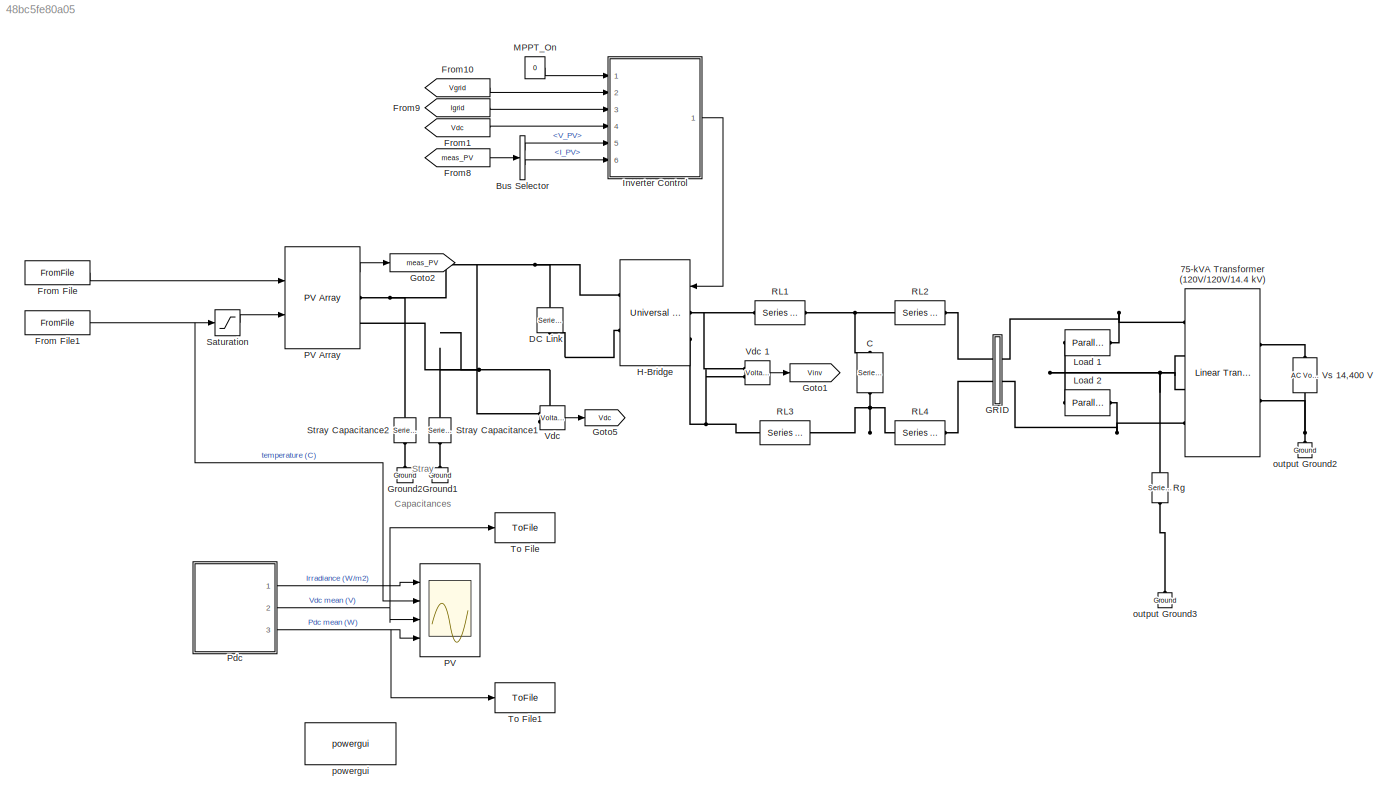
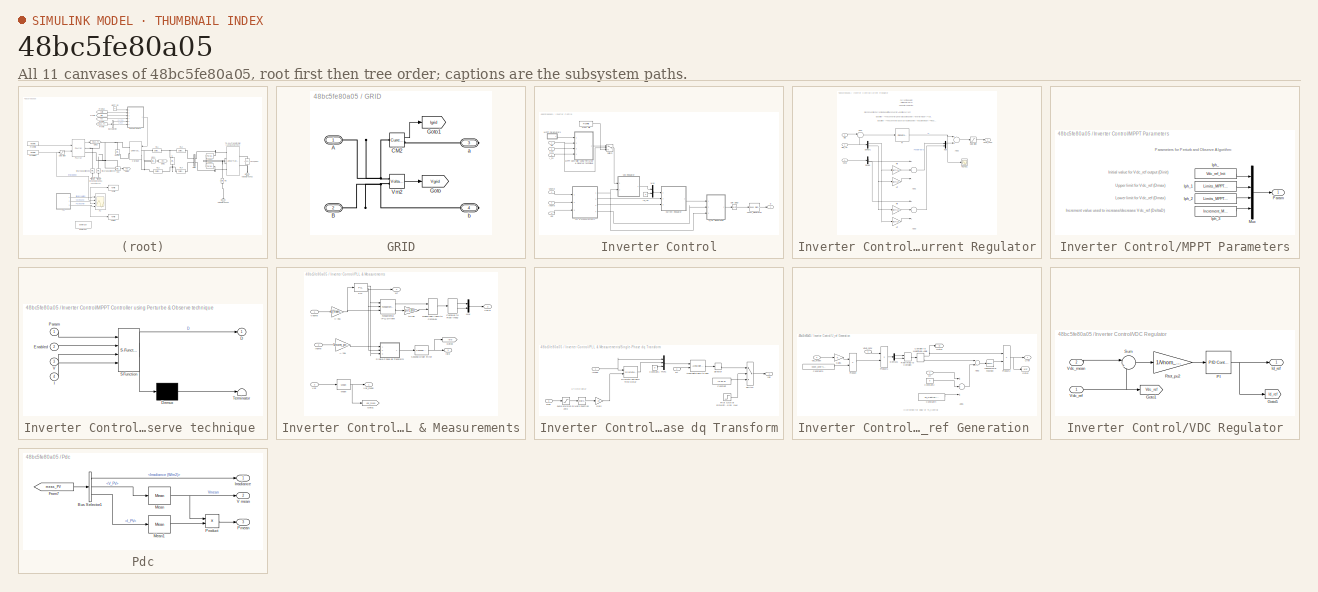
[diagram: thumbnail index - all 11 canvases of the model, root first then tree order]
MODEL slx_48bc5fe80a05
KIND model
CONFIG AbsTol = auto
CONFIG EnableMultiTasking = off
CONFIG FixedStep = auto
CONFIG InitFcn = %\nFc=3780;                          % PWM Carrier frequency (Hz) \nTs_Power=1/Fc/200;         % Simscape Power Systems sample time (s)\nTs_Control=20*Ts_Power;  % Inverter Control system sample time (s)
CONFIG MaxStep = auto
CONFIG MinStep = auto
CONFIG PreLoadFcn = %\nFc=3780;                          % PWM Carrier frequency (Hz) \nTs_Power=1/Fc/200;         % Simscape Power Systems sample time (s)\nTs_Control=20*Ts_Power;  % Inverter Control system sample time (s)
CONFIG RelTol = 1e-3
CONFIG SampleTimeConstraint = Unconstrained
CONFIG Solver = FixedStepDiscrete
CONFIG SolverName = FixedStepDiscrete
CONFIG StartTime = 0.0
CONFIG StopTime = 600
BLOCK [Reference] 75-kVA Transformer (120V//120V//14.4 kV)  REF=powerlib/Elements/Linear Transformer
  Ports = [0, 0, 0, 0, 0, 2, 4]
  SourceBlock = powerlib/Elements/Linear Transformer
  SourceProductBaseCode = PS
  SourceProductName = Simscape Electrical
  SourceType = Linear Transformer
BLOCK [BusSelector] Bus Selector
  OutputAsBus = off
  OutputSignals = V_PV,I_PV
  Ports = [1, 2]
BLOCK [Reference] C  REF=powerlib/Elements/Series RLC Load
  AttributesFormatString = \n
  Ports = [0, 0, 0, 0, 0, 1, 1]
  SourceBlock = powerlib/Elements/Series RLC Load
  SourceProductBaseCode = PS
  SourceProductName = Simscape Electrical
  SourceType = Series RLC Load
BLOCK [Reference] DC Link  REF=powerlib/Elements/Series RLC Branch
  AttributesFormatString = \n
  Ports = [0, 0, 0, 0, 0, 1, 1]
  SourceBlock = powerlib/Elements/Series RLC Branch
  SourceProductBaseCode = PS
  SourceProductName = Simscape Electrical
  SourceType = Series RLC Branch
BLOCK [FromFile] From File
  FileName = irrtimeseries.mat
  InterpolationWithinTimeRange = Zero order hold
  SampleTime = 0
BLOCK [FromFile] From File1
  FileName = temtimeseries.mat
  InterpolationWithinTimeRange = Zero order hold
  SampleTime = 0
BLOCK [From] From1
  CloseFcn = tagdialog Close
  GotoTag = Vdc
  TagVisibility = global
BLOCK [From] From10
  CloseFcn = tagdialog Close
  GotoTag = Vgrid
  TagVisibility = global
BLOCK [From] From8
  CloseFcn = tagdialog Close
  GotoTag = meas_PV
  TagVisibility = global
BLOCK [From] From9
  CloseFcn = tagdialog Close
  GotoTag = Igrid
  TagVisibility = global
BLOCK [SubSystem] GRID
  Ports = [0, 0, 0, 0, 0, 2, 2]
  RequestExecContextInheritance = off
BLOCK [PMIOPort] GRID/A
  Side = Left
BLOCK [PMIOPort] GRID/B
  Port = 2
  Side = Left
BLOCK [Reference] GRID/CM2  REF=powerlib/Measurements/Current Measurement
  Ports = [0, 1, 0, 0, 0, 1, 1]
  SourceBlock = powerlib/Measurements/Current Measurement
  SourceProductBaseCode = PS
  SourceProductName = Simscape Electrical
  SourceType = Current Measurement
  UserDataPersistent = on
BLOCK [Goto] GRID/Goto
  GotoTag = Vgrid
  TagVisibility = global
BLOCK [Goto] GRID/Goto1
  GotoTag = Igrid
  TagVisibility = global
BLOCK [Reference] GRID/Vm2  REF=powerlib/Measurements/Voltage Measurement
  Ports = [0, 1, 0, 0, 0, 2]
  SourceBlock = powerlib/Measurements/Voltage Measurement
  SourceProductBaseCode = PS
  SourceProductName = Simscape Electrical
  SourceType = Voltage Measurement
  UserDataPersistent = on
BLOCK [PMIOPort] GRID/a
  Port = 3
  Side = Right
BLOCK [PMIOPort] GRID/b
  Port = 4
  Side = Right
BLOCK [Goto] Goto1
  GotoTag = Vinv
  TagVisibility = global
BLOCK [Goto] Goto2
  GotoTag = meas_PV
  TagVisibility = global
BLOCK [Goto] Goto5
  GotoTag = Vdc
  TagVisibility = global
BLOCK [Reference] Ground1  REF=powerlib/Elements/Ground
  Ports = [0, 0, 0, 0, 0, 1]
  SourceBlock = powerlib/Elements/Ground
  SourceProductBaseCode = PS
  SourceProductName = Simscape Electrical
  SourceType = Ground
BLOCK [Reference] Ground2  REF=powerlib/Elements/Ground
  Ports = [0, 0, 0, 0, 0, 1]
  SourceBlock = powerlib/Elements/Ground
  SourceProductBaseCode = PS
  SourceProductName = Simscape Electrical
  SourceType = Ground
BLOCK [Reference] H-Bridge   REF=powerlib/Power
Electronics/Universal Bridge
  Ports = [1, 0, 0, 0, 0, 2, 2]
  SourceBlock = powerlib/Power\nElectronics/Universal Bridge
  SourceProductBaseCode = PS
  SourceProductName = Simscape Electrical
  SourceType = Universal Bridge
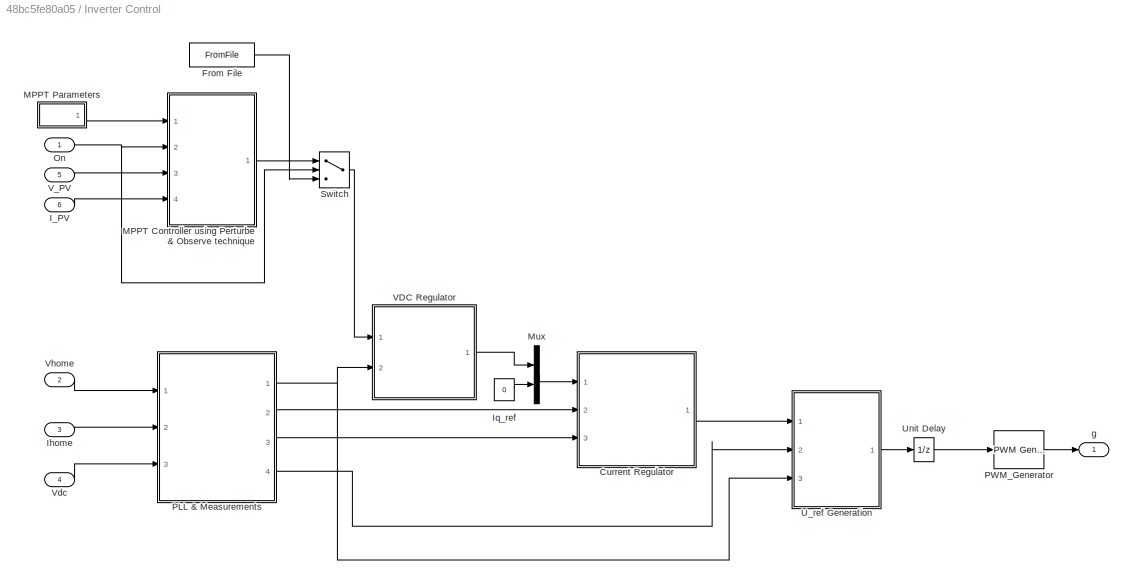
BLOCK [SubSystem] Inverter Control
  Ports = [6, 1]
  RequestExecContextInheritance = off
BLOCK [SubSystem] Inverter Control/Current Regulator
  Ports = [3, 1]
  RequestExecContextInheritance = off
BLOCK [Sum] Inverter Control/Current Regulator/Add1
  InputSameDT = off
  Inputs = ++-
  OutDataTypeStr = Inherit: Inherit via internal rule
  Ports = [3, 1]
  SaturateOnIntegerOverflow = off
BLOCK [Sum] Inverter Control/Current Regulator/Add2
  InputSameDT = off
  OutDataTypeStr = Inherit: Inherit via internal rule
  Ports = [2, 1]
  SaturateOnIntegerOverflow = off
BLOCK [Sum] Inverter Control/Current Regulator/Add3
  InputSameDT = off
  Inputs = +++
  OutDataTypeStr = Inherit: Inherit via internal rule
  Ports = [3, 1]
  SaturateOnIntegerOverflow = off
BLOCK [Demux] Inverter Control/Current Regulator/Demux
  DisplayOption = bar
  Outputs = 2
  Ports = [1, 2]
BLOCK [Demux] Inverter Control/Current Regulator/Demux1
  DisplayOption = bar
  Outputs = 2
  Ports = [1, 2]
BLOCK [Inport] Inverter Control/Current Regulator/IdIq
  IconDisplay = Port number
  Port = 3
  PortDimensions = 2
BLOCK [Inport] Inverter Control/Current Regulator/IdIq_ref
  IconDisplay = Port number
  PortDimensions = 2
BLOCK [Gain] Inverter Control/Current Regulator/Lff
  Gain = RLff(2)
BLOCK [Gain] Inverter Control/Current Regulator/Lff  
  Gain = RLff(2)
BLOCK [Mux] Inverter Control/Current Regulator/Mux
  DisplayOption = bar
  Inputs = 2
  Ports = [2, 1]
BLOCK [Reference] Inverter Control/Current Regulator/PI  REF=simulink/Continuous/PID Controller
  Ports = [1, 1]
  SourceBlock = simulink/Continuous/PID Controller
  SourceProductBaseCode = SL
  SourceProductName = Simulink
  SourceType = PID 1dof
BLOCK [Scope] Inverter Control/Current Regulator/PI_Ireg1
  Floating = off
  NumInputPorts = 1
  Ports = [1]
  ScopeSpecificationString = C++SS(StrPVP('Location','[1318, 429, 1642, 668]'),MxPVP('AxesTitles',53,'struct(''axes1'',''%<SignalLabel>'')'),MxPVP('ScopeGraphics',56,'struct(''FigureColor'',''[0.5 0.5 0.5]'',''AxesColor'',''[0 0 0]'',''AxesTickColor'',''[1 1 1]'',''LineColors'',''[1 1 0;1 0 1;0 1 1;1 0 0;0 1 0;0 0 1]'',''LineStyles'',''-|-|-|-|-|-'',''LineWidths'',''[0.5 0.5 0.5 0.5 0.5 0.5]'',''MarkerStyles'',''none|none|non...<+191ch>
BLOCK [Gain] Inverter Control/Current Regulator/Rff
  Gain = RLff(1)
BLOCK [Gain] Inverter Control/Current Regulator/Rff 
  Gain = RLff(1)
BLOCK [Saturate] Inverter Control/Current Regulator/Saturation
  InputPortMap = u0
  LowerLimit = -1.5
  Ports = [1, 1]
  UpperLimit = 1.5
BLOCK [Sum] Inverter Control/Current Regulator/Sum
  IconShape = round
  InputSameDT = off
  Inputs = |-+
  OutDataTypeStr = Inherit: Inherit via internal rule
  Ports = [2, 1]
  SaturateOnIntegerOverflow = off
BLOCK [Inport] Inverter Control/Current Regulator/VdVq
  IconDisplay = Port number
  Port = 2
  PortDimensions = 2
BLOCK [Outport] Inverter Control/Current Regulator/VdVq_conv
  IconDisplay = Port number
BLOCK [FromFile] Inverter Control/From File
  FileName = OPTV.mat
  InterpolationWithinTimeRange = Zero order hold
  SampleTime = 0
BLOCK [Inport] Inverter Control/I_PV
  IconDisplay = Port number
  Port = 6
  PortDimensions = 1
BLOCK [Inport] Inverter Control/Ihome
  IconDisplay = Port number
  Port = 3
  PortDimensions = 1
BLOCK [Constant] Inverter Control/Iq_ref
  Value = 0
BLOCK [SubSystem] Inverter Control/MPPT Controller using Perturbe & Observe technique 
  ErrorFcn = Stateflow.Translate.translate
  PermitHierarchicalResolution = ExplicitOnly
  Ports = [4, 1]
  RequestExecContextInheritance = off
  SFBlockType = MATLAB Function
  TreatAsAtomicUnit = on
BLOCK [Demux] Inverter Control/MPPT Controller using Perturbe & Observe technique / Demux 
  Outputs = 1
  Ports = [1, 1]
BLOCK [S-Function] Inverter Control/MPPT Controller using Perturbe & Observe technique / SFunction 
  EnableBusSupport = on
  FunctionName = sf_sfun
  PortCounts = [4 2]
  Ports = [4, 2]
  SFcnIsStateOwnerBlock = off
  SFunctionDeploymentMode = off
  Tag = Stateflow S-Function power_PVarray_3500W_521 2
BLOCK [Terminator] Inverter Control/MPPT Controller using Perturbe & Observe technique / Terminator 
BLOCK [Outport] Inverter Control/MPPT Controller using Perturbe & Observe technique /D
  IconDisplay = Port number
BLOCK [Inport] Inverter Control/MPPT Controller using Perturbe & Observe technique /Enabled
  IconDisplay = Port number
  Port = 2
BLOCK [Inport] Inverter Control/MPPT Controller using Perturbe & Observe technique /I
  IconDisplay = Port number
  Port = 4
BLOCK [Inport] Inverter Control/MPPT Controller using Perturbe & Observe technique /Param
  IconDisplay = Port number
BLOCK [Inport] Inverter Control/MPPT Controller using Perturbe & Observe technique /V
  IconDisplay = Port number
  Port = 3
BLOCK [SubSystem] Inverter Control/MPPT Parameters
  Ports = [0, 1]
  RequestExecContextInheritance = off
BLOCK [Constant] Inverter Control/MPPT Parameters/Iph_
  Value = Vdc_ref_Init
BLOCK [Constant] Inverter Control/MPPT Parameters/Iph_1
  Value = Limits_MPPT(1)
BLOCK [Constant] Inverter Control/MPPT Parameters/Iph_2
  Value = Limits_MPPT(2)
BLOCK [Constant] Inverter Control/MPPT Parameters/Iph_3
  Value = Increment_MPPT
BLOCK [Mux] Inverter Control/MPPT Parameters/Mux
  DisplayOption = bar
  Ports = [4, 1]
BLOCK [Outport] Inverter Control/MPPT Parameters/Param
  IconDisplay = Port number
BLOCK [Mux] Inverter Control/Mux
  DisplayOption = bar
  Inputs = 2
  Ports = [2, 1]
BLOCK [Inport] Inverter Control/On
  IconDisplay = Port number
  PortDimensions = 1
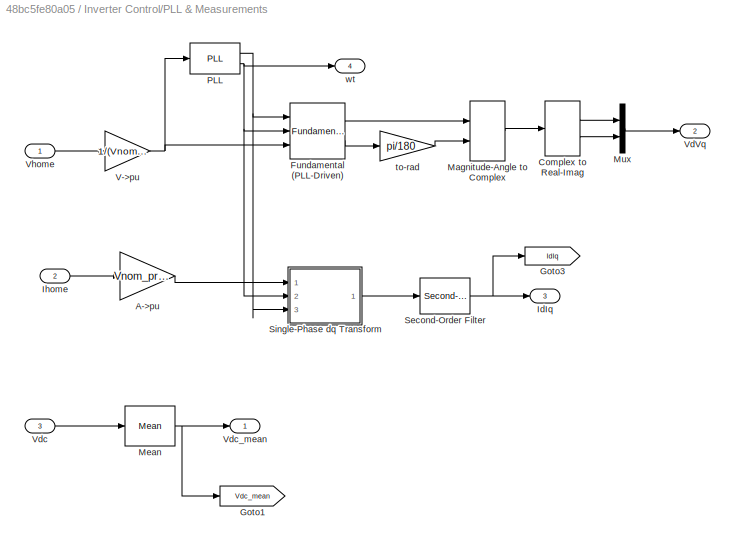
BLOCK [SubSystem] Inverter Control/PLL & Measurements
  Ports = [3, 4]
  RequestExecContextInheritance = off
BLOCK [Gain] Inverter Control/PLL & Measurements/A->pu
  Gain = Vnom_prim/Pnom/sqrt(2)
BLOCK [ComplexToRealImag] Inverter Control/PLL & Measurements/Complex to Real-Imag
  Ports = [1, 2]
BLOCK [Reference] Inverter Control/PLL & Measurements/Fundamental (PLL-Driven)  REF=powerlib_meascontrol/Measurements/Fundamental
(PLL-Driven)
  Ports = [3, 2]
  SourceBlock = powerlib_meascontrol/Measurements/Fundamental\n(PLL-Driven)
  SourceProductBaseCode = PS
  SourceProductName = Simscape Electrical
  SourceType = Fundamental (PLL-Driven)
BLOCK [Goto] Inverter Control/PLL & Measurements/Goto1
  GotoTag = Vdc_mean
  TagVisibility = global
BLOCK [Goto] Inverter Control/PLL & Measurements/Goto3
  GotoTag = IdIq
  TagVisibility = global
BLOCK [Outport] Inverter Control/PLL & Measurements/IdIq
  IconDisplay = Port number
  Port = 3
BLOCK [Inport] Inverter Control/PLL & Measurements/Ihome
  IconDisplay = Port number
  Port = 2
BLOCK [MagnitudeAngleToComplex] Inverter Control/PLL & Measurements/Magnitude-Angle to Complex
  Ports = [2, 1]
BLOCK [Reference] Inverter Control/PLL & Measurements/Mean  REF=powerlib_meascontrol/Measurements/Mean
  Ports = [1, 1]
  SourceBlock = powerlib_meascontrol/Measurements/Mean
  SourceProductBaseCode = PS
  SourceProductName = Simscape Electrical
  SourceType = Mean
BLOCK [Mux] Inverter Control/PLL & Measurements/Mux
  DisplayOption = bar
  Inputs = 2
  Ports = [2, 1]
BLOCK [Reference] Inverter Control/PLL & Measurements/PLL  REF=powerlib_meascontrol/PLL/PLL
  Ports = [1, 2]
  SourceBlock = powerlib_meascontrol/PLL/PLL
  SourceProductBaseCode = PS
  SourceProductName = Simscape Electrical
  SourceType = PLL
BLOCK [Reference] Inverter Control/PLL & Measurements/Second-Order Filter  REF=powerlib_meascontrol/Filters/Second-Order
Filter
  Ports = [1, 1]
  SourceBlock = powerlib_meascontrol/Filters/Second-Order\nFilter
  SourceProductBaseCode = PS
  SourceProductName = Simscape Electrical
  SourceType = Second-Order Filter
BLOCK [SubSystem] Inverter Control/PLL & Measurements/Single-Phase dq Transform
  Ports = [3, 1]
  RequestExecContextInheritance = off
BLOCK [Reference] Inverter Control/PLL & Measurements/Single-Phase dq Transform/Alpha-Beta-Zero to dq0  REF=powerlib_meascontrol/Transformations/Alpha-Beta-Zero
to dq0
  Ports = [2, 1]
  SourceBlock = powerlib_meascontrol/Transformations/Alpha-Beta-Zero\nto dq0
  SourceProductBaseCode = PS
  SourceProductName = Simscape Electrical
  SourceType = Alpha-Beta-Zero to dq0 Transformation
BLOCK [Constant] Inverter Control/PLL & Measurements/Single-Phase dq Transform/Constant
  Value = [0.92 0]
BLOCK [Constant] Inverter Control/PLL & Measurements/Single-Phase dq Transform/Constant1
  Value = 0
BLOCK [Reference] Inverter Control/PLL & Measurements/Single-Phase dq Transform/Discrete Variable Time Delay  REF=powerlib_meascontrol/Additional Components/Discrete Variable
Time Delay
  Ports = [2, 1]
  SourceBlock = powerlib_meascontrol/Additional Components/Discrete Variable\nTime Delay
  SourceProductBaseCode = PS
  SourceProductName = Simscape Electrical
  SourceType = Discrete Variable Time Delay
BLOCK [Step] Inverter Control/PLL & Measurements/Single-Phase dq Transform/First cycle of simulation Id=0.92, Iq=0
  SampleTime = Ts_Control
  Time = 1/Fnom
BLOCK [Inport] Inverter Control/PLL & Measurements/Single-Phase dq Transform/Freq
  IconDisplay = Port number
  Port = 3
BLOCK [Gain] Inverter Control/PLL & Measurements/Single-Phase dq Transform/Gain
  Gain = 1/4
  OutDataTypeStr = Inherit: Inherit via internal rule
  ParamDataTypeStr = Inherit: Inherit via internal rule
  SaturateOnIntegerOverflow = off
BLOCK [Outport] Inverter Control/PLL & Measurements/Single-Phase dq Transform/Idq
  IconDisplay = Port number
BLOCK [Inport] Inverter Control/PLL & Measurements/Single-Phase dq Transform/Imeas
  IconDisplay = Port number
BLOCK [Math] Inverter Control/PLL & Measurements/Single-Phase dq Transform/Math Function
  Operator = reciprocal
  Ports = [1, 1]
BLOCK [Mux] Inverter Control/PLL & Measurements/Single-Phase dq Transform/Mux1
  DisplayOption = bar
  Inputs = 3
  Ports = [3, 1]
BLOCK [Selector] Inverter Control/PLL & Measurements/Single-Phase dq Transform/Selector
  IndexOptions = Index vector (dialog)
  Indices = [1 2]
  InputPortWidth = 3
  OutputSizes = 1
  Ports = [1, 1]
BLOCK [Switch] Inverter Control/PLL & Measurements/Single-Phase dq Transform/Switch
  Criteria = u2 ~= 0
  InputSameDT = off
  SaturateOnIntegerOverflow = off
BLOCK [Saturate] Inverter Control/PLL & Measurements/Single-Phase dq Transform/avoid division by zero
  InputPortMap = u0
  LowerLimit = 40
  Ports = [1, 1]
  UpperLimit = 70
BLOCK [Inport] Inverter Control/PLL & Measurements/Single-Phase dq Transform/wt
  IconDisplay = Port number
  Port = 2
BLOCK [Gain] Inverter Control/PLL & Measurements/V->pu
  Gain = 1/(Vnom_prim*sqrt(2))
BLOCK [Outport] Inverter Control/PLL & Measurements/VdVq
  IconDisplay = Port number
  Port = 2
BLOCK [Inport] Inverter Control/PLL & Measurements/Vdc
  IconDisplay = Port number
  Port = 3
BLOCK [Outport] Inverter Control/PLL & Measurements/Vdc_mean
  IconDisplay = Port number
BLOCK [Inport] Inverter Control/PLL & Measurements/Vhome
  IconDisplay = Port number
BLOCK [Gain] Inverter Control/PLL & Measurements/to-rad
  Gain = pi/180
  OutDataTypeStr = Inherit: Inherit via internal rule
  ParamDataTypeStr = Inherit: Inherit via internal rule
  SaturateOnIntegerOverflow = off
BLOCK [Outport] Inverter Control/PLL & Measurements/wt
  IconDisplay = Port number
  Port = 4
BLOCK [Reference] Inverter Control/PWM_Generator  REF=powerlib_meascontrol/Pulse & Signal
Generators/PWM Generator
(2-Level)
  AttributesFormatString = %<ModulatorType>
  Ports = [1, 1]
  SourceBlock = powerlib_meascontrol/Pulse & Signal\nGenerators/PWM Generator\n(2-Level)
  SourceProductBaseCode = PS
  SourceProductName = Simscape Electrical
  SourceType = PWM Generator (2-Level)
BLOCK [Switch] Inverter Control/Switch
  Criteria = u2 ~= 0
  InputSameDT = off
  SaturateOnIntegerOverflow = off
BLOCK [SubSystem] Inverter Control/U_ref Generation 
  Ports = [3, 1]
  RequestExecContextInheritance = off
BLOCK [Sum] Inverter Control/U_ref Generation /Add1
  InputSameDT = off
  Inputs = +++
  OutDataTypeStr = Inherit: Inherit via internal rule
  Ports = [3, 1]
  SaturateOnIntegerOverflow = off
BLOCK [Sum] Inverter Control/U_ref Generation /Add2
  InputSameDT = off
  OutDataTypeStr = Inherit: Inherit via internal rule
  Ports = [2, 1]
  SaturateOnIntegerOverflow = off
BLOCK [ComplexToMagnitudeAngle] Inverter Control/U_ref Generation /Complex to Magnitude-Angle
  Ports = [1, 2]
BLOCK [Constant] Inverter Control/U_ref Generation /Constant2
  Value = 0
BLOCK [Constant] Inverter Control/U_ref Generation /Constant3
  Value = Vnom_prim*sqrt(2)
BLOCK [Constant] Inverter Control/U_ref Generation /Constant4
  Value = Ts_Control*Fnom*(2*pi)
BLOCK [Demux] Inverter Control/U_ref Generation /Demux1
  DisplayOption = bar
  Outputs = 2
  Ports = [1, 2]
BLOCK [Gain] Inverter Control/U_ref Generation /Gain1
  OutDataTypeStr = Inherit: Inherit via internal rule
  ParamDataTypeStr = Inherit: Inherit via internal rule
  SaturateOnIntegerOverflow = off
BLOCK [Goto] Inverter Control/U_ref Generation /Goto1
  GotoTag = m
  TagVisibility = global
BLOCK [Goto] Inverter Control/U_ref Generation /Goto2
  GotoTag = Uref
  TagVisibility = global
BLOCK [Product] Inverter Control/U_ref Generation /Product
  InputSameDT = off
  Inputs = */
  OutDataTypeStr = Inherit: Inherit via internal rule
  Ports = [2, 1]
  SaturateOnIntegerOverflow = off
BLOCK [Product] Inverter Control/U_ref Generation /Product1
  InputSameDT = off
  Inputs = */
  OutDataTypeStr = Inherit: Inherit via internal rule
  Ports = [2, 1]
  SaturateOnIntegerOverflow = off
BLOCK [Product] Inverter Control/U_ref Generation /Product2
  InputSameDT = off
  Inputs = **
  OutDataTypeStr = Inherit: Inherit via internal rule
  Ports = [2, 1]
  SaturateOnIntegerOverflow = off
BLOCK [RealImagToComplex] Inverter Control/U_ref Generation /Real-Imag to Complex
  Ports = [2, 1]
BLOCK [Trigonometry] Inverter Control/U_ref Generation /Trigonometric Function
  Ports = [1, 1]
BLOCK [Outport] Inverter Control/U_ref Generation /Uref
  IconDisplay = Port number
BLOCK [Inport] Inverter Control/U_ref Generation /VdVq_conv
  IconDisplay = Port number
BLOCK [Inport] Inverter Control/U_ref Generation /Vdc_mean
  IconDisplay = Port number
  Port = 3
BLOCK [Inport] Inverter Control/U_ref Generation /wt
  IconDisplay = Port number
  Port = 2
BLOCK [UnitDelay] Inverter Control/Unit Delay
  InitialCondition = 0.1684
  InputProcessing = Elements as channels (sample based)
  SampleTime = Ts_Control
BLOCK [SubSystem] Inverter Control/VDC Regulator
  Ports = [2, 1]
  RequestExecContextInheritance = off
BLOCK [Goto] Inverter Control/VDC Regulator/Goto1
  GotoTag = Vdc_ref
  TagVisibility = global
BLOCK [Goto] Inverter Control/VDC Regulator/Goto5
  GotoTag = Id_ref
  TagVisibility = global
BLOCK [Outport] Inverter Control/VDC Regulator/Id_ref
  IconDisplay = Port number
  InitialOutput = 0
BLOCK [Reference] Inverter Control/VDC Regulator/PI  REF=simulink/Continuous/PID Controller
  Ports = [1, 1]
  SourceBlock = simulink/Continuous/PID Controller
  SourceProductBaseCode = SL
  SourceProductName = Simulink
  SourceType = PID 1dof
BLOCK [Gain] Inverter Control/VDC Regulator/Rtot_pu2
  Gain = 1/Vnom_dc
BLOCK [Sum] Inverter Control/VDC Regulator/Sum
  IconShape = round
  InputSameDT = off
  Inputs = |+-
  OutDataTypeStr = Inherit: Inherit via internal rule
  Ports = [2, 1]
  SaturateOnIntegerOverflow = off
BLOCK [Inport] Inverter Control/VDC Regulator/Vdc_mean
  IconDisplay = Port number
  Port = 2
  PortDimensions = 1
BLOCK [Inport] Inverter Control/VDC Regulator/Vdc_ref
  IconDisplay = Port number
  PortDimensions = 1
BLOCK [Inport] Inverter Control/V_PV
  IconDisplay = Port number
  Port = 5
  PortDimensions = 1
BLOCK [Inport] Inverter Control/Vdc
  IconDisplay = Port number
  Port = 4
  PortDimensions = 1
BLOCK [Inport] Inverter Control/Vhome
  IconDisplay = Port number
  Port = 2
  PortDimensions = 1
BLOCK [Outport] Inverter Control/g
  IconDisplay = Port number
BLOCK [Reference] Load 1  REF=powerlib/Elements/Parallel RLC Load
  AttributesFormatString = \n
  Ports = [0, 0, 0, 0, 0, 1, 1]
  SourceBlock = powerlib/Elements/Parallel RLC Load
  SourceProductBaseCode = PS
  SourceProductName = Simscape Electrical
  SourceType = Parallel RLC Load
BLOCK [Reference] Load 2  REF=powerlib/Elements/Parallel RLC Load
  AttributesFormatString = \n
  Ports = [0, 0, 0, 0, 0, 1, 1]
  SourceBlock = powerlib/Elements/Parallel RLC Load
  SourceProductBaseCode = PS
  SourceProductName = Simscape Electrical
  SourceType = Parallel RLC Load
BLOCK [Constant] MPPT_On
  Value = 0
BLOCK [Scope] PV
  Floating = off
  NumInputPorts = 4
  Ports = [4]
  ScopeSpecificationString = Simulink.scopes.TimeScopeBlockCfg('CurrentConfiguration', extmgr.ConfigurationSet(extmgr.Configuration('Core','General UI',true),extmgr.Configuration('Core','Source UI',true),extmgr.Configuration('Sources','WiredSimulink',true,'DataLoggingDecimation','10','DataLoggingDecimateData',true,'DataLoggingSaveFormat','Array'),extmgr.Configuration('Visuals','Time Domain',true,'SerializedDisplays',{struct('...<+3734ch>
BLOCK [Reference] PV Array  REF=re_lib/Solar/PV Array
  AttributesFormatString = %<ModuleName>\n%<Nser>-module string\n%<Npar> parallel strings
  Ports = [2, 1, 0, 0, 0, 0, 2]
  SourceBlock = re_lib/Solar/PV Array
  SourceProductBaseCode = PS
  SourceProductName = Simscape Electrical
  SourceType = PV array
BLOCK [SubSystem] Pdc
  Ports = [0, 3]
  RequestExecContextInheritance = off
BLOCK [BusSelector] Pdc/Bus Selector1
  OutputAsBus = off
  OutputSignals = Irradiance (W/m2),V_PV,I_PV
  Ports = [1, 3]
BLOCK [From] Pdc/From7
  CloseFcn = tagdialog Close
  GotoTag = meas_PV
  TagVisibility = global
BLOCK [Outport] Pdc/Irradiance
  IconDisplay = Port number
BLOCK [Reference] Pdc/Mean  REF=powerlib_meascontrol/Measurements/Mean
  Ports = [1, 1]
  SourceBlock = powerlib_meascontrol/Measurements/Mean
  SourceProductBaseCode = PS
  SourceProductName = Simscape Electrical
  SourceType = Mean
BLOCK [Reference] Pdc/Mean1  REF=powerlib_meascontrol/Measurements/Mean
  Ports = [1, 1]
  SourceBlock = powerlib_meascontrol/Measurements/Mean
  SourceProductBaseCode = PS
  SourceProductName = Simscape Electrical
  SourceType = Mean
BLOCK [Outport] Pdc/Pmean
  IconDisplay = Port number
  Port = 3
BLOCK [Product] Pdc/Product
  InputSameDT = off
  OutDataTypeStr = Inherit: Inherit via internal rule
  Ports = [2, 1]
  RndMeth = Floor
  SaturateOnIntegerOverflow = off
BLOCK [Outport] Pdc/V mean
  IconDisplay = Port number
  Port = 2
BLOCK [Reference] RL1  REF=powerlib/Elements/Series RLC Branch
  Ports = [0, 0, 0, 0, 0, 1, 1]
  SourceBlock = powerlib/Elements/Series RLC Branch
  SourceProductBaseCode = PS
  SourceProductName = Simscape Electrical
  SourceType = Series RLC Branch
BLOCK [Reference] RL2  REF=powerlib/Elements/Series RLC Branch
  Ports = [0, 0, 0, 0, 0, 1, 1]
  SourceBlock = powerlib/Elements/Series RLC Branch
  SourceProductBaseCode = PS
  SourceProductName = Simscape Electrical
  SourceType = Series RLC Branch
BLOCK [Reference] RL3  REF=powerlib/Elements/Series RLC Branch
  Ports = [0, 0, 0, 0, 0, 1, 1]
  SourceBlock = powerlib/Elements/Series RLC Branch
  SourceProductBaseCode = PS
  SourceProductName = Simscape Electrical
  SourceType = Series RLC Branch
BLOCK [Reference] RL4  REF=powerlib/Elements/Series RLC Branch
  Ports = [0, 0, 0, 0, 0, 1, 1]
  SourceBlock = powerlib/Elements/Series RLC Branch
  SourceProductBaseCode = PS
  SourceProductName = Simscape Electrical
  SourceType = Series RLC Branch
BLOCK [Reference] Rg  REF=powerlib/Elements/Series RLC Branch
  Ports = [0, 0, 0, 0, 0, 1, 1]
  SourceBlock = powerlib/Elements/Series RLC Branch
  SourceProductBaseCode = PS
  SourceProductName = Simscape Electrical
  SourceType = Series RLC Branch
BLOCK [Saturate] Saturation
  InputPortMap = u0
  LowerLimit = 5
  Ports = [1, 1]
  UpperLimit = 55
BLOCK [Reference] Stray Capacitance1  REF=powerlib/Elements/Series RLC Branch
  Ports = [0, 0, 0, 0, 0, 1, 1]
  SourceBlock = powerlib/Elements/Series RLC Branch
  SourceProductBaseCode = PS
  SourceProductName = Simscape Electrical
  SourceType = Series RLC Branch
BLOCK [Reference] Stray Capacitance2  REF=powerlib/Elements/Series RLC Branch
  Ports = [0, 0, 0, 0, 0, 1, 1]
  SourceBlock = powerlib/Elements/Series RLC Branch
  SourceProductBaseCode = PS
  SourceProductName = Simscape Electrical
  SourceType = Series RLC Branch
BLOCK [ToFile] To File
  Filename = voltage.mat
  Ports = [1]
  SampleTime = 0.04
  SaveFormat = Timeseries
BLOCK [ToFile] To File1
  Filename = power.mat
  Ports = [1]
  SampleTime = 0.04
  SaveFormat = Timeseries
BLOCK [Reference] Vdc   REF=powerlib/Measurements/Voltage Measurement
  AttributesFormatString = \n
  Ports = [0, 1, 0, 0, 0, 2]
  SourceBlock = powerlib/Measurements/Voltage Measurement
  SourceProductBaseCode = PS
  SourceProductName = Simscape Electrical
  SourceType = Voltage Measurement
  Tag = PoWeRsYsTeMmEaSuReMeNt
BLOCK [Reference] Vdc 1  REF=powerlib/Measurements/Voltage Measurement
  AttributesFormatString = \n
  Ports = [0, 1, 0, 0, 0, 2]
  SourceBlock = powerlib/Measurements/Voltage Measurement
  SourceProductBaseCode = PS
  SourceProductName = Simscape Electrical
  SourceType = Voltage Measurement
  Tag = PoWeRsYsTeMmEaSuReMeNt
BLOCK [Reference] Vs 14,400 V  REF=powerlib/Electrical
Sources/AC Voltage Source
  AttributesFormatString = \n
  Description = source block
  Ports = [0, 0, 0, 0, 0, 1, 1]
  SourceBlock = powerlib/Electrical\nSources/AC Voltage Source
  SourceProductBaseCode = PS
  SourceProductName = Simscape Electrical
  SourceType = AC Voltage Source
BLOCK [Reference] output Ground2  REF=powerlib/Elements/Ground
  AttributesFormatString = \n
  Ports = [0, 0, 0, 0, 0, 1]
  SourceBlock = powerlib/Elements/Ground
  SourceProductBaseCode = PS
  SourceProductName = Simscape Electrical
  SourceType = Ground
BLOCK [Reference] output Ground3  REF=powerlib/Elements/Ground
  AttributesFormatString = \n
  Ports = [0, 0, 0, 0, 0, 1]
  SourceBlock = powerlib/Elements/Ground
  SourceProductBaseCode = PS
  SourceProductName = Simscape Electrical
  SourceType = Ground
BLOCK [Reference] powergui  REF=powerlib/powergui
  Ports = []
  Priority = 1
  SourceBlock = powerlib/powergui
  SourceProductBaseCode = PS
  SourceProductName = Simscape Power Systems
  SourceType = PSB option menu block
ANNOTATION (root): Stray Capacitances
ANNOTATION Inverter Control/Current Regulator: Capacitor neglected
ANNOTATION Inverter Control/Current Regulator: Current Regulator (with feedforward)
ANNOTATION Inverter Control/Current Regulator: Id positive --> The converter generates active power ("Inverter mode") = Active Power P positive
ANNOTATION Inverter Control/Current Regulator: Iq positive --> The converter absorbs reactive power ("Inductive mode") = Reactive Power Q negative
ANNOTATION Inverter Control/Current Regulator: Sign Convention: Current going out of the converter = positive current
ANNOTATION Inverter Control/MPPT Parameters: Increment value used to increase/decrease Vdc_ref (DeltaD)
ANNOTATION Inverter Control/MPPT Parameters: Initial value for Vdc_ref output (Dinit)
ANNOTATION Inverter Control/MPPT Parameters: Lower limit for Vdc_ref (Dmax)
ANNOTATION Inverter Control/MPPT Parameters: Parameters for Perturb and Observe Algorithm:
ANNOTATION Inverter Control/MPPT Parameters: Upper limit for Vdc_ref (Dmax)
ANNOTATION Inverter Control/PLL & Measurements/Single-Phase dq Transform: 1/4 cycle delay
ANNOTATION Inverter Control/U_ref Generation : (Correction for delay of Ts_Control)
LINE Bus Selector:1 -> Inverter Control:5
LINE Bus Selector:2 -> Inverter Control:6
NET From File1:1 -> PV:2, Saturation:1
LINE From File:1 -> PV Array:1
LINE From10:1 -> Inverter Control:2
LINE From1:1 -> Inverter Control:4
LINE From8:1 -> Bus Selector:1
LINE From9:1 -> Inverter Control:3
LINE GRID/CM2:1 -> GRID/Goto1:1
LINE GRID/Vm2:1 -> GRID/Goto:1
LINE Inverter Control/Current Regulator/Add1:1 -> Inverter Control/Current Regulator/Mux:1
LINE Inverter Control/Current Regulator/Add2:1 -> Inverter Control/Current Regulator/Saturation:1
LINE Inverter Control/Current Regulator/Add3:1 -> Inverter Control/Current Regulator/Mux:2
NET Inverter Control/Current Regulator/Demux1:1 -> Inverter Control/Current Regulator/Lff:1, Inverter Control/Current Regulator/Rff :1
NET Inverter Control/Current Regulator/Demux1:2 -> Inverter Control/Current Regulator/Lff  :1, Inverter Control/Current Regulator/Rff:1
LINE Inverter Control/Current Regulator/Demux:1 -> Inverter Control/Current Regulator/Add1:1
LINE Inverter Control/Current Regulator/Demux:2 -> Inverter Control/Current Regulator/Add3:1
LINE Inverter Control/Current Regulator/IdIq:1 -> Inverter Control/Current Regulator/Sum:1
NET Inverter Control/Current Regulator/IdIq_ref:1 -> Inverter Control/Current Regulator/Demux1:1, Inverter Control/Current Regulator/Sum:2
LINE Inverter Control/Current Regulator/Lff  :1 -> Inverter Control/Current Regulator/Add1:3
LINE Inverter Control/Current Regulator/Lff:1 -> Inverter Control/Current Regulator/Add3:3
LINE Inverter Control/Current Regulator/Mux:1 -> Inverter Control/Current Regulator/Add2:2
NET Inverter Control/Current Regulator/PI:1 -> Inverter Control/Current Regulator/Add2:1, Inverter Control/Current Regulator/PI_Ireg1:1
LINE Inverter Control/Current Regulator/Rff :1 -> Inverter Control/Current Regulator/Add1:2
LINE Inverter Control/Current Regulator/Rff:1 -> Inverter Control/Current Regulator/Add3:2
LINE Inverter Control/Current Regulator/Saturation:1 -> Inverter Control/Current Regulator/VdVq_conv:1
LINE Inverter Control/Current Regulator/Sum:1 -> Inverter Control/Current Regulator/PI:1
LINE Inverter Control/Current Regulator/VdVq:1 -> Inverter Control/Current Regulator/Demux:1
LINE Inverter Control/Current Regulator:1 -> Inverter Control/U_ref Generation :1
LINE Inverter Control/From File:1 -> Inverter Control/Switch:3
LINE Inverter Control/I_PV:1 -> Inverter Control/MPPT Controller using Perturbe & Observe technique :4
LINE Inverter Control/Ihome:1 -> Inverter Control/PLL & Measurements:2
LINE Inverter Control/Iq_ref:1 -> Inverter Control/Mux:2
LINE Inverter Control/MPPT Controller using Perturbe & Observe technique :1 -> Inverter Control/Switch:1
LINE Inverter Control/MPPT Parameters/Iph_1:1 -> Inverter Control/MPPT Parameters/Mux:2
LINE Inverter Control/MPPT Parameters/Iph_2:1 -> Inverter Control/MPPT Parameters/Mux:3
LINE Inverter Control/MPPT Parameters/Iph_3:1 -> Inverter Control/MPPT Parameters/Mux:4
LINE Inverter Control/MPPT Parameters/Iph_:1 -> Inverter Control/MPPT Parameters/Mux:1
LINE Inverter Control/MPPT Parameters/Mux:1 -> Inverter Control/MPPT Parameters/Param:1
LINE Inverter Control/MPPT Parameters:1 -> Inverter Control/MPPT Controller using Perturbe & Observe technique :1
LINE Inverter Control/Mux:1 -> Inverter Control/Current Regulator:1
NET Inverter Control/On:1 -> Inverter Control/MPPT Controller using Perturbe & Observe technique :2, Inverter Control/Switch:2
LINE Inverter Control/PLL & Measurements/A->pu:1 -> Inverter Control/PLL & Measurements/Single-Phase dq Transform:1
LINE Inverter Control/PLL & Measurements/Complex to Real-Imag:1 -> Inverter Control/PLL & Measurements/Mux:1
LINE Inverter Control/PLL & Measurements/Complex to Real-Imag:2 -> Inverter Control/PLL & Measurements/Mux:2
LINE Inverter Control/PLL & Measurements/Fundamental (PLL-Driven):1 -> Inverter Control/PLL & Measurements/Magnitude-Angle to Complex:1
LINE Inverter Control/PLL & Measurements/Fundamental (PLL-Driven):2 -> Inverter Control/PLL & Measurements/to-rad:1
LINE Inverter Control/PLL & Measurements/Ihome:1 -> Inverter Control/PLL & Measurements/A->pu:1
LINE Inverter Control/PLL & Measurements/Magnitude-Angle to Complex:1 -> Inverter Control/PLL & Measurements/Complex to Real-Imag:1
NET Inverter Control/PLL & Measurements/Mean:1 -> Inverter Control/PLL & Measurements/Goto1:1, Inverter Control/PLL & Measurements/Vdc_mean:1
LINE Inverter Control/PLL & Measurements/Mux:1 -> Inverter Control/PLL & Measurements/VdVq:1
NET Inverter Control/PLL & Measurements/PLL:1 -> Inverter Control/PLL & Measurements/Fundamental (PLL-Driven):1, Inverter Control/PLL & Measurements/Single-Phase dq Transform:3
NET Inverter Control/PLL & Measurements/PLL:2 -> Inverter Control/PLL & Measurements/Fundamental (PLL-Driven):2, Inverter Control/PLL & Measurements/Single-Phase dq Transform:2, Inverter Control/PLL & Measurements/wt:1
NET Inverter Control/PLL & Measurements/Second-Order Filter:1 -> Inverter Control/PLL & Measurements/Goto3:1, Inverter Control/PLL & Measurements/IdIq:1
LINE Inverter Control/PLL & Measurements/Single-Phase dq Transform/Alpha-Beta-Zero to dq0:1 -> Inverter Control/PLL & Measurements/Single-Phase dq Transform/Selector:1
LINE Inverter Control/PLL & Measurements/Single-Phase dq Transform/Constant1:1 -> Inverter Control/PLL & Measurements/Single-Phase dq Transform/Mux1:3
LINE Inverter Control/PLL & Measurements/Single-Phase dq Transform/Constant:1 -> Inverter Control/PLL & Measurements/Single-Phase dq Transform/Switch:3
LINE Inverter Control/PLL & Measurements/Single-Phase dq Transform/Discrete Variable Time Delay:1 -> Inverter Control/PLL & Measurements/Single-Phase dq Transform/Mux1:2
LINE Inverter Control/PLL & Measurements/Single-Phase dq Transform/First cycle of simulation Id=0.92, Iq=0:1 -> Inverter Control/PLL & Measurements/Single-Phase dq Transform/Switch:2
LINE Inverter Control/PLL & Measurements/Single-Phase dq Transform/Freq:1 -> Inverter Control/PLL & Measurements/Single-Phase dq Transform/avoid division by zero:1
LINE Inverter Control/PLL & Measurements/Single-Phase dq Transform/Gain:1 -> Inverter Control/PLL & Measurements/Single-Phase dq Transform/Discrete Variable Time Delay:2
NET Inverter Control/PLL & Measurements/Single-Phase dq Transform/Imeas:1 -> Inverter Control/PLL & Measurements/Single-Phase dq Transform/Discrete Variable Time Delay:1, Inverter Control/PLL & Measurements/Single-Phase dq Transform/Mux1:1
LINE Inverter Control/PLL & Measurements/Single-Phase dq Transform/Math Function:1 -> Inverter Control/PLL & Measurements/Single-Phase dq Transform/Gain:1
LINE Inverter Control/PLL & Measurements/Single-Phase dq Transform/Mux1:1 -> Inverter Control/PLL & Measurements/Single-Phase dq Transform/Alpha-Beta-Zero to dq0:1
LINE Inverter Control/PLL & Measurements/Single-Phase dq Transform/Selector:1 -> Inverter Control/PLL & Measurements/Single-Phase dq Transform/Switch:1
LINE Inverter Control/PLL & Measurements/Single-Phase dq Transform/Switch:1 -> Inverter Control/PLL & Measurements/Single-Phase dq Transform/Idq:1
LINE Inverter Control/PLL & Measurements/Single-Phase dq Transform/avoid division by zero:1 -> Inverter Control/PLL & Measurements/Single-Phase dq Transform/Math Function:1
LINE Inverter Control/PLL & Measurements/Single-Phase dq Transform/wt:1 -> Inverter Control/PLL & Measurements/Single-Phase dq Transform/Alpha-Beta-Zero to dq0:2
LINE Inverter Control/PLL & Measurements/Single-Phase dq Transform:1 -> Inverter Control/PLL & Measurements/Second-Order Filter:1
NET Inverter Control/PLL & Measurements/V->pu:1 -> Inverter Control/PLL & Measurements/Fundamental (PLL-Driven):3, Inverter Control/PLL & Measurements/PLL:1
LINE Inverter Control/PLL & Measurements/Vdc:1 -> Inverter Control/PLL & Measurements/Mean:1
LINE Inverter Control/PLL & Measurements/Vhome:1 -> Inverter Control/PLL & Measurements/V->pu:1
LINE Inverter Control/PLL & Measurements/to-rad:1 -> Inverter Control/PLL & Measurements/Magnitude-Angle to Complex:2
NET Inverter Control/PLL & Measurements:1 -> Inverter Control/U_ref Generation :3, Inverter Control/VDC Regulator:2
LINE Inverter Control/PLL & Measurements:2 -> Inverter Control/Current Regulator:2
LINE Inverter Control/PLL & Measurements:3 -> Inverter Control/Current Regulator:3
LINE Inverter Control/PLL & Measurements:4 -> Inverter Control/U_ref Generation :2
LINE Inverter Control/PWM_Generator:1 -> Inverter Control/g:1
LINE Inverter Control/Switch:1 -> Inverter Control/VDC Regulator:1
LINE Inverter Control/U_ref Generation /Add1:1 -> Inverter Control/U_ref Generation /Add2:2
LINE Inverter Control/U_ref Generation /Add2:1 -> Inverter Control/U_ref Generation /Trigonometric Function:1
NET Inverter Control/U_ref Generation /Complex to Magnitude-Angle:1 -> Inverter Control/U_ref Generation /Goto1:1, Inverter Control/U_ref Generation /Product2:1
LINE Inverter Control/U_ref Generation /Complex to Magnitude-Angle:2 -> Inverter Control/U_ref Generation /Add2:1
LINE Inverter Control/U_ref Generation /Constant2:1 -> Inverter Control/U_ref Generation /Add1:2
LINE Inverter Control/U_ref Generation /Constant3:1 -> Inverter Control/U_ref Generation /Product:2
LINE Inverter Control/U_ref Generation /Constant4:1 -> Inverter Control/U_ref Generation /Add1:3
LINE Inverter Control/U_ref Generation /Demux1:1 -> Inverter Control/U_ref Generation /Real-Imag to Complex:1
LINE Inverter Control/U_ref Generation /Demux1:2 -> Inverter Control/U_ref Generation /Real-Imag to Complex:2
LINE Inverter Control/U_ref Generation /Gain1:1 -> Inverter Control/U_ref Generation /Product:1
LINE Inverter Control/U_ref Generation /Product1:1 -> Inverter Control/U_ref Generation /Demux1:1
NET Inverter Control/U_ref Generation /Product2:1 -> Inverter Control/U_ref Generation /Goto2:1, Inverter Control/U_ref Generation /Uref:1
LINE Inverter Control/U_ref Generation /Product:1 -> Inverter Control/U_ref Generation /Product1:2
LINE Inverter Control/U_ref Generation /Real-Imag to Complex:1 -> Inverter Control/U_ref Generation /Complex to Magnitude-Angle:1
LINE Inverter Control/U_ref Generation /Trigonometric Function:1 -> Inverter Control/U_ref Generation /Product2:2
LINE Inverter Control/U_ref Generation /VdVq_conv:1 -> Inverter Control/U_ref Generation /Product1:1
LINE Inverter Control/U_ref Generation /Vdc_mean:1 -> Inverter Control/U_ref Generation /Gain1:1
LINE Inverter Control/U_ref Generation /wt:1 -> Inverter Control/U_ref Generation /Add1:1
LINE Inverter Control/U_ref Generation :1 -> Inverter Control/Unit Delay:1
LINE Inverter Control/Unit Delay:1 -> Inverter Control/PWM_Generator:1
NET Inverter Control/VDC Regulator/PI:1 -> Inverter Control/VDC Regulator/Goto5:1, Inverter Control/VDC Regulator/Id_ref:1
LINE Inverter Control/VDC Regulator/Rtot_pu2:1 -> Inverter Control/VDC Regulator/PI:1
LINE Inverter Control/VDC Regulator/Sum:1 -> Inverter Control/VDC Regulator/Rtot_pu2:1
LINE Inverter Control/VDC Regulator/Vdc_mean:1 -> Inverter Control/VDC Regulator/Sum:1
NET Inverter Control/VDC Regulator/Vdc_ref:1 -> Inverter Control/VDC Regulator/Goto1:1, Inverter Control/VDC Regulator/Sum:2
LINE Inverter Control/VDC Regulator:1 -> Inverter Control/Mux:1
LINE Inverter Control/V_PV:1 -> Inverter Control/MPPT Controller using Perturbe & Observe technique :3
LINE Inverter Control/Vdc:1 -> Inverter Control/PLL & Measurements:3
LINE Inverter Control/Vhome:1 -> Inverter Control/PLL & Measurements:1
LINE Inverter Control:1 -> H-Bridge :1
LINE MPPT_On:1 -> Inverter Control:1
LINE PV Array:1 -> Goto2:1
LINE Pdc/Bus Selector1:1 -> Pdc/Irradiance:1
LINE Pdc/Bus Selector1:2 -> Pdc/Mean:1
LINE Pdc/Bus Selector1:3 -> Pdc/Mean1:1
LINE Pdc/From7:1 -> Pdc/Bus Selector1:1
LINE Pdc/Mean1:1 -> Pdc/Product:2
NET Pdc/Mean:1 -> Pdc/Product:1, Pdc/V mean:1
LINE Pdc/Product:1 -> Pdc/Pmean:1
LINE Pdc:1 -> PV:1
NET Pdc:2 -> PV:3, To File:1
NET Pdc:3 -> PV:4, To File1:1
LINE Saturation:1 -> PV Array:2
LINE Vdc 1:1 -> Goto1:1
LINE Vdc :1 -> Goto5:1
PLINE 75-kVA Transformer (120V//120V//14.4 kV):LConn1 -- Vs 14,400 V:RConn1
PNET net1: 75-kVA Transformer (120V//120V//14.4 kV):LConn2 -- Vs 14,400 V:LConn1 -- output Ground2:LConn1
PNET net2: 75-kVA Transformer (120V//120V//14.4 kV):RConn1 -- GRID:RConn1 -- Load 1:RConn1
PNET net3: 75-kVA Transformer (120V//120V//14.4 kV):RConn2 -- 75-kVA Transformer (120V//120V//14.4 kV):RConn3 -- Load 1:LConn1 -- Load 2:LConn1 -- Rg:LConn1
PNET net4: 75-kVA Transformer (120V//120V//14.4 kV):RConn4 -- GRID:RConn2 -- Load 2:RConn1
PNET net5: C:LConn1 -- RL3:RConn1 -- RL4:LConn1
PNET net6: C:RConn1 -- RL1:RConn1 -- RL2:LConn1
PNET net7: DC Link:LConn1 -- H-Bridge :RConn1 -- PV Array:RConn1 -- Stray Capacitance2:LConn1 -- Vdc :LConn1
PNET net8: DC Link:RConn1 -- H-Bridge :RConn2 -- PV Array:RConn2 -- Stray Capacitance1:LConn1 -- Vdc :LConn2
PNET net9: GRID/A:RConn1 -- GRID/CM2:LConn1 -- GRID/Vm2:LConn1
PNET net10: GRID/B:RConn1 -- GRID/Vm2:LConn2 -- GRID/b:RConn1
PLINE GRID/CM2:RConn1 -- GRID/a:RConn1
PLINE GRID:LConn1 -- RL2:RConn1
PLINE GRID:LConn2 -- RL4:RConn1
PLINE Ground1:LConn1 -- Stray Capacitance1:RConn1
PLINE Ground2:LConn1 -- Stray Capacitance2:RConn1
PNET net11: H-Bridge :LConn1 -- RL1:LConn1 -- Vdc 1:LConn1
PNET net12: H-Bridge :LConn2 -- RL3:LConn1 -- Vdc 1:LConn2
PLINE Rg:RConn1 -- output Ground3:LConn1
note: NET lines group one-source signal fan-out (src -> all destinations, sorted); 1:1 wires keep LINE; PNET lines group multi-terminal physical nets as a canonical sorted terminal list (undirected conserving connections); 2-terminal nets keep the pairwise PLINE form
CHART Inverter Control/MPPT Controller
using Perturbe 
& Observe technique
  states=1 transitions=1
  STATE_LABEL 'eML_blk_kernel()'
  STATE_LABEL 'SCRIPT:\nfunction D  = PandO(Param, Enabled, V, I)\n\n% MPPT controller based on the Perturb & Observe algorithm.\n\n% D output = Reference for DC link voltage (Vdc_ref) \n%\n% Enabled input = 1 to enable the MPPT controller\n% V input = PV array terminal voltage (V)\n% I input = PV array current (A)\n%\n% Param input:\nDinit = Param(1);  %Initial value for Vdc_ref\nDmax = Param(2);   %Maximum value for Vdc_re...<+626ch>'
